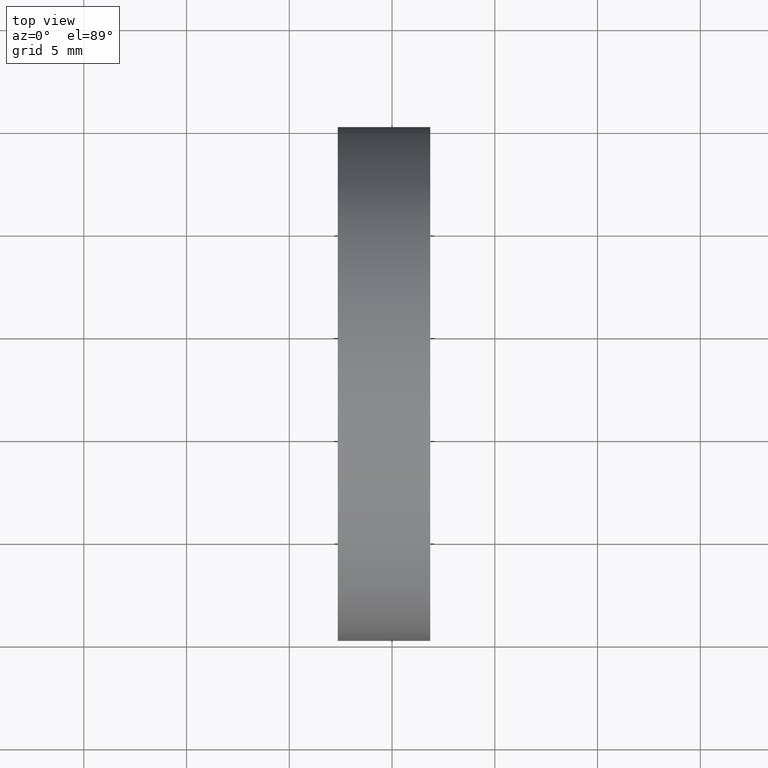
[diagram: clean part render]
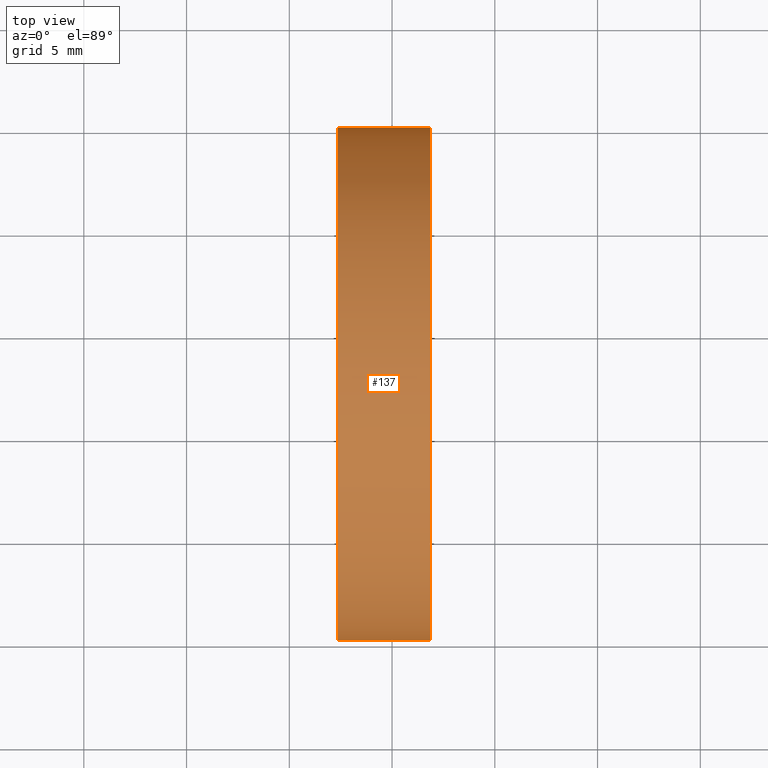
[diagram: same view with one face highlighted and labeled with its STEP entity id]
A machine part, top view. The second image highlights one B-rep face of the part: STEP entity #137.
In plain terms, the highlighted cylindrical surface (partial cylindrical patch) has radius 12.5 mm, axis along (-1, 0, -0).
Its self-contained STEP definition (entity closure, byte-faithful):
#1 = CARTESIAN_POINT ( 'NONE',  ( 61.85821049369445700, 20.07872591329309100, 0.0000000000000000000 ) ) ;
#4 = AXIS2_PLACEMENT_3D ( 'NONE', #96, #87, #142 ) ;
#10 = CARTESIAN_POINT ( 'NONE',  ( 55.00739462442117400, 20.07872591329309500, 0.0000000000000000000 ) ) ;
#12 = DIRECTION ( 'NONE',  ( -1.000000000000000000, 4.853228644174421400E-016, -0.0000000000000000000 ) ) ;
#22 = DIRECTION ( 'NONE',  ( -5.551115123125784700E-016, -1.000000000000000000, 0.0000000000000000000 ) ) ;
#28 = ORIENTED_EDGE ( 'NONE', *, *, #153, .F. ) ;
#40 = CARTESIAN_POINT ( 'NONE',  ( 57.35819015802110200, 20.07872591329309800, 0.0000000000000000000 ) ) ;
#44 = VECTOR ( 'NONE', #99, 1000.000000000000000 ) ;
#46 = VERTEX_POINT ( 'NONE', #107 ) ;
#51 = VERTEX_POINT ( 'NONE', #149 ) ;
#56 = DIRECTION ( 'NONE',  ( -1.000000000000000000, 4.853228644174421400E-016, -0.0000000000000000000 ) ) ;
#58 = LINE ( 'NONE', #10, #102 ) ;
#59 = EDGE_CURVE ( 'NONE', #77, #46, #123, .T. ) ;
#67 = DIRECTION ( 'NONE',  ( -1.000000000000000000, 4.853228644174421400E-016, -0.0000000000000000000 ) ) ;
#68 = ORIENTED_EDGE ( 'NONE', *, *, #59, .F. ) ;
#75 = CARTESIAN_POINT ( 'NONE',  ( 61.85821049369445700, 32.57872591329309800, 0.0000000000000000000 ) ) ;
#77 = VERTEX_POINT ( 'NONE', #40 ) ;
#78 = CARTESIAN_POINT ( 'NONE',  ( 55.00739462442118800, 45.07872591329309100, 1.530808498934191500E-015 ) ) ;
#87 = DIRECTION ( 'NONE',  ( -1.000000000000000000, 4.853228644174421400E-016, -0.0000000000000000000 ) ) ;
#91 = LINE ( 'NONE', #78, #44 ) ;
#94 = ORIENTED_EDGE ( 'NONE', *, *, #157, .T. ) ;
#96 = CARTESIAN_POINT ( 'NONE',  ( 55.00739462442118100, 32.57872591329309800, 0.0000000000000000000 ) ) ;
#97 = CYLINDRICAL_SURFACE ( 'NONE', #4, 12.50000000000000000 ) ;
#99 = DIRECTION ( 'NONE',  ( -1.000000000000000000, 4.853228644174421400E-016, -0.0000000000000000000 ) ) ;
#100 = DIRECTION ( 'NONE',  ( -5.551115123125779700E-016, -1.000000000000000000, 0.0000000000000000000 ) ) ;
#102 = VECTOR ( 'NONE', #56, 1000.000000000000000 ) ;
#104 = EDGE_CURVE ( 'NONE', #51, #46, #91, .T. ) ;
#107 = CARTESIAN_POINT ( 'NONE',  ( 57.35819015802111700, 45.07872591329309100, 1.530808498934191900E-015 ) ) ;
#108 = ORIENTED_EDGE ( 'NONE', *, *, #104, .T. ) ;
#117 = VERTEX_POINT ( 'NONE', #1 ) ;
#123 = CIRCLE ( 'NONE', #148, 12.49999999999999600 ) ;
#130 = EDGE_LOOP ( 'NONE', ( #94, #108, #68, #28 ) ) ;
#134 = AXIS2_PLACEMENT_3D ( 'NONE', #75, #12, #100 ) ;
#135 = CIRCLE ( 'NONE', #134, 12.50000000000000700 ) ;
#137 = ADVANCED_FACE ( 'NONE', ( #140 ), #97, .T. ) ;
#140 = FACE_OUTER_BOUND ( 'NONE', #130, .T. ) ;
#142 = DIRECTION ( 'NONE',  ( -5.551115123125782700E-016, -1.000000000000000000, 0.0000000000000000000 ) ) ;
#144 = CARTESIAN_POINT ( 'NONE',  ( 57.35819015802111000, 32.57872591329309800, 0.0000000000000000000 ) ) ;
#148 = AXIS2_PLACEMENT_3D ( 'NONE', #144, #67, #22 ) ;
#149 = CARTESIAN_POINT ( 'NONE',  ( 61.85821049369446500, 45.07872591329309800, 1.530808498934192300E-015 ) ) ;
#153 = EDGE_CURVE ( 'NONE', #117, #77, #58, .T. ) ;
#157 = EDGE_CURVE ( 'NONE', #117, #51, #135, .T. ) ;